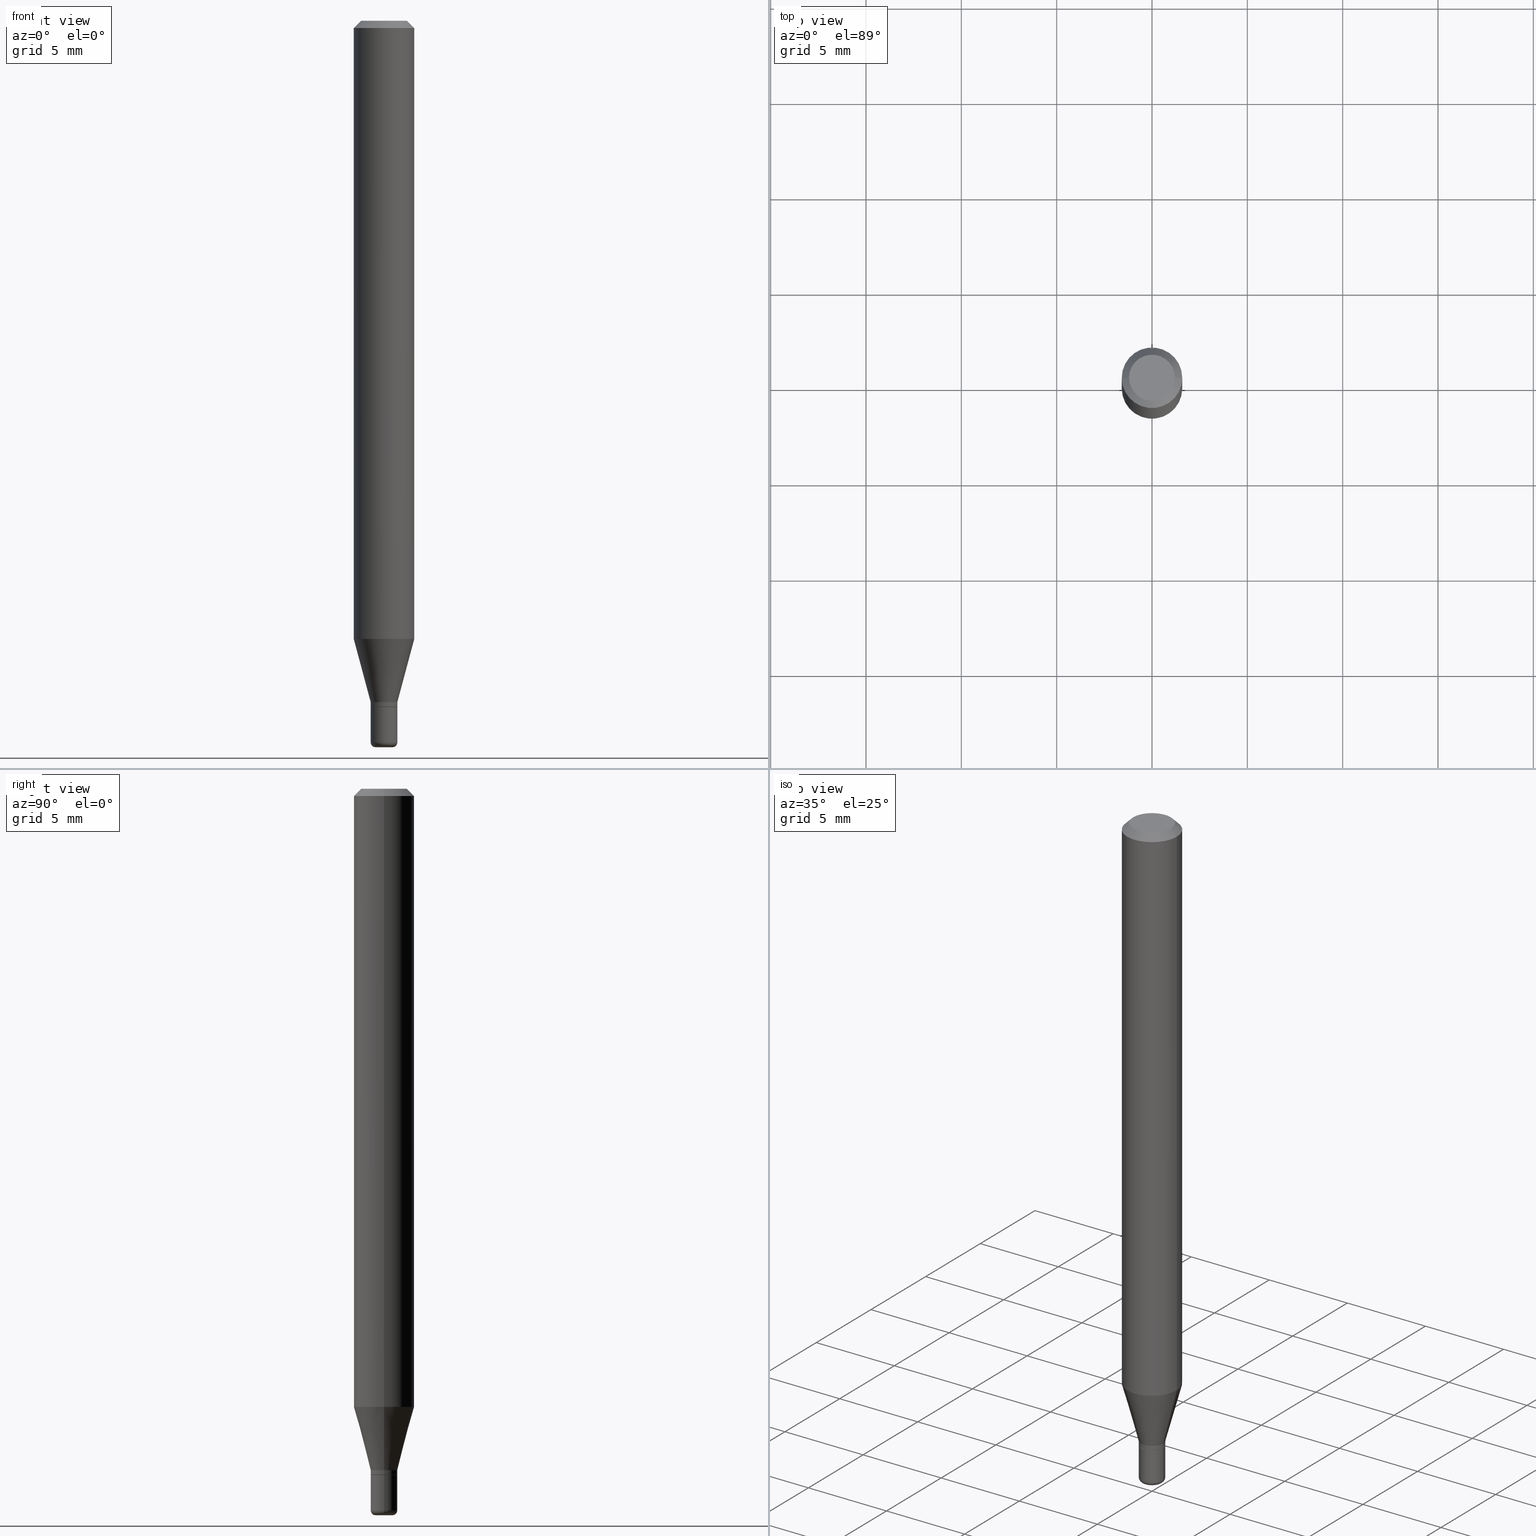
[diagram: canonical four-view strip — front | top / right | iso, engineering-drawing reading convention]
A machine part, canonical four-view strip (front | top / right | iso — engineering-drawing reading convention). The complete STEP part file that produces these views, byte-faithful:
ISO-10303-21;
HEADER;
FILE_DESCRIPTION (( 'STEP AP203' ),
    '1' );
FILE_NAME ('09014.STEP',
    '2024-02-29T21:17:28',
    ( '' ),
    ( '' ),
    'SwSTEP 2.0',
    'SolidWorks 2023',
    '' );
FILE_SCHEMA (( 'CONFIG_CONTROL_DESIGN' ));
ENDSEC;

DATA;
#1 = CARTESIAN_POINT ( 'NONE',  ( -0.06250000000000000000, 3.840629472727455270E-16, -0.01499999999999970281 ) ) ;
#2 = DIRECTION ( 'NONE',  ( 1.000000000000000000, -6.982962677686269077E-15, 0.000000000000000000 ) ) ;
#3 = EDGE_LOOP ( 'NONE', ( #253, #7, #452, #295 ) ) ;
#4 = DIRECTION ( 'NONE',  ( -2.445468806185136597E-29, 3.491481338843145583E-15, 1.000000000000000000 ) ) ;
#5 = CARTESIAN_POINT ( 'NONE',  ( 3.465229298364339647E-29, -4.947429057140738329E-15, -1.417000000000000259 ) ) ;
#6 = CYLINDRICAL_SURFACE ( 'NONE', #377, 0.02749999999999997585 ) ;
#7 = ORIENTED_EDGE ( 'NONE', *, *, #97, .T. ) ;
#8 = EDGE_CURVE ( 'NONE', #343, #446, #265, .T. ) ;
#9 = CARTESIAN_POINT ( 'NONE',  ( 3.668203209277704895E-29, -5.237222008264718177E-15, -1.500000000000000222 ) ) ;
#10 = CARTESIAN_POINT ( 'NONE',  ( 3.440774610302487541E-29, -4.912514243752305891E-15, -1.407000000000000028 ) ) ;
#11 = DIRECTION ( 'NONE',  ( 1.000000000000000000, -6.982962677686279332E-15, 0.000000000000000000 ) ) ;
#12 = ADVANCED_FACE ( 'NONE', ( #168 ), #504, .T. ) ;
#13 = DIRECTION ( 'NONE',  ( 0.7071067811866199593, -2.468850131083015945E-15, 0.7071067811864750752 ) ) ;
#14 = ORIENTED_EDGE ( 'NONE', *, *, #75, .F. ) ;
#15 = CARTESIAN_POINT ( 'NONE',  ( 3.316907271900976589E-16, 0.04750000000000000749, -2.925296391183627249E-17 ) ) ;
#16 = CARTESIAN_POINT ( 'NONE',  ( 0.02749999999999997932, -5.104545717388677595E-15, -1.407000000000000028 ) ) ;
#17 = AXIS2_PLACEMENT_3D ( 'NONE', #107, #467, #264 ) ;
#18 = LOCAL_TIME ( 16, 17, 28.00000000000000000, #276 ) ;
#19 = DIRECTION ( 'NONE',  ( 1.000000000000000000, -6.982962677686265922E-15, 4.876176775795935232E-29 ) ) ;
#20 = EDGE_LOOP ( 'NONE', ( #287, #457, #94, #83 ) ) ;
#21 = FACE_OUTER_BOUND ( 'NONE', #58, .T. ) ;
#22 = VERTEX_POINT ( 'NONE', #327 ) ;
#23 = DIRECTION ( 'NONE',  ( -2.445468806185136597E-29, 3.491481338843145583E-15, 1.000000000000000000 ) ) ;
#24 = APPROVAL_STATUS ( 'not_yet_approved' ) ;
#25 = DIRECTION ( 'NONE',  ( 0.2588190451025207950, 1.565188264969625912E-15, 0.9659258262890682012 ) ) ;
#26 = EDGE_CURVE ( 'NONE', #292, #22, #321, .T. ) ;
#27 = CARTESIAN_POINT ( 'NONE',  ( -0.06250000000000000000, 4.440892098500626162E-16, -3.074334431409316114E-30 ) ) ;
#28 = CALENDAR_DATE ( 2024, 29, 2 ) ;
#29 = CARTESIAN_POINT ( 'NONE',  ( 3.643748521215853910E-29, -5.202307194876288105E-15, -1.490000000000000213 ) ) ;
#30 = PERSON_AND_ORGANIZATION_ROLE ( 'classification_officer' ) ;
#31 = DIRECTION ( 'NONE',  ( 1.000000000000000000, -6.982962677686266711E-15, 4.852736867747365086E-29 ) ) ;
#32 = CALENDAR_DATE ( 2024, 29, 2 ) ;
#33 = LOCAL_TIME ( 16, 17, 28.00000000000000000, #256 ) ;
#34 = ORIENTED_EDGE ( 'NONE', *, *, #307, .F. ) ;
#35 = ORIENTED_EDGE ( 'NONE', *, *, #97, .F. ) ;
#36 = ORIENTED_EDGE ( 'NONE', *, *, #477, .F. ) ;
#37 = DIRECTION ( 'NONE',  ( -2.445468806185136597E-29, 3.491481338843145583E-15, 1.000000000000000000 ) ) ;
#38 = CARTESIAN_POINT ( 'NONE',  ( 3.440774610302487541E-29, -4.912514243752305891E-15, -1.407000000000000028 ) ) ;
#39 = ORIENTED_EDGE ( 'NONE', *, *, #384, .T. ) ;
#40 = FACE_OUTER_BOUND ( 'NONE', #262, .T. ) ;
#41 = CIRCLE ( 'NONE', #352, 0.01750000000000000167 ) ;
#42 = FACE_OUTER_BOUND ( 'NONE', #150, .T. ) ;
#43 = CIRCLE ( 'NONE', #149, 0.01750000000000000167 ) ;
#44 = DESIGN_CONTEXT ( 'detailed design', #122, 'design' ) ;
#45 = CARTESIAN_POINT ( 'NONE',  ( 3.121343126147216343E-29, -4.456450742493863778E-15, -1.276378221735089191 ) ) ;
#46 = DIRECTION ( 'NONE',  ( -0.7071067811865479058, 2.468850131082261005E-15, -0.7071067811865471286 ) ) ;
#47 = ADVANCED_FACE ( 'NONE', ( #171 ), #250, .F. ) ;
#48 = ORIENTED_EDGE ( 'NONE', *, *, #116, .T. ) ;
#49 = CARTESIAN_POINT ( 'NONE',  ( 3.643748521215853910E-29, -5.202307194876288105E-15, -1.490000000000000213 ) ) ;
#50 = CYLINDRICAL_SURFACE ( 'NONE', #345, 0.06250000000000000000 ) ;
#51 = DIRECTION ( 'NONE',  ( 1.000000000000000000, -6.982962677686266711E-15, 4.852736867747365086E-29 ) ) ;
#52 = DIRECTION ( 'NONE',  ( -2.438088387897960049E-29, 3.491481338843145188E-15, 1.000000000000000000 ) ) ;
#53 = VECTOR ( 'NONE', #402, 39.37007874015748143 ) ;
#54 = AXIS2_PLACEMENT_3D ( 'NONE', #479, #400, #249 ) ;
#55 = VERTEX_POINT ( 'NONE', #418 ) ;
#56 = DIRECTION ( 'NONE',  ( -2.438088387897960049E-29, 3.491481338843145188E-15, 1.000000000000000000 ) ) ;
#57 = DIRECTION ( 'NONE',  ( -2.445468806185136597E-29, 3.491481338843145583E-15, 1.000000000000000000 ) ) ;
#58 = EDGE_LOOP ( 'NONE', ( #283, #462 ) ) ;
#59 = CARTESIAN_POINT ( 'NONE',  ( 3.465229298364339647E-29, -4.947429057140738329E-15, -1.417000000000000259 ) ) ;
#60 = AXIS2_PLACEMENT_3D ( 'NONE', #273, #342, #488 ) ;
#61 = AXIS2_PLACEMENT_3D ( 'NONE', #426, #341, #310 ) ;
#62 = CARTESIAN_POINT ( 'NONE',  ( -0.02699999999999996847, -4.755582518485511109E-15, -1.417000000000000259 ) ) ;
#63 = ADVANCED_FACE ( 'NONE', ( #350 ), #437, .T. ) ;
#64 = PERSON_AND_ORGANIZATION ( #394, #209 ) ;
#65 = DIRECTION ( 'NONE',  ( -1.000000000000000000, 6.982962677686266711E-15, 0.000000000000000000 ) ) ;
#66 = EDGE_CURVE ( 'NONE', #55, #82, #41, .T. ) ;
#67 = CLOSED_SHELL ( 'NONE', ( #252, #398, #47, #408, #12, #236 ) ) ;
#68 = APPROVAL_ROLE ( '' ) ;
#69 = AXIS2_PLACEMENT_3D ( 'NONE', #59, #23, #383 ) ;
#70 = APPROVAL_ROLE ( '' ) ;
#71 = PERSON_AND_ORGANIZATION ( #394, #209 ) ;
#72 = COORDINATED_UNIVERSAL_TIME_OFFSET ( 5, 0, .BEHIND. ) ;
#73 = AXIS2_PLACEMENT_3D ( 'NONE', #423, #502, #31 ) ;
#74 = AXIS2_PLACEMENT_3D ( 'NONE', #90, #211, #369 ) ;
#75 = EDGE_CURVE ( 'NONE', #446, #338, #269, .T. ) ;
#76 = VERTEX_POINT ( 'NONE', #387 ) ;
#77 = CARTESIAN_POINT ( 'NONE',  ( 0.02749999999999997238, -1.920314736363721225E-16, 1.340948613343880837E-30 ) ) ;
#78 = ORIENTED_EDGE ( 'NONE', *, *, #354, .T. ) ;
#79 = CC_DESIGN_PERSON_AND_ORGANIZATION_ASSIGNMENT ( #436, #198, ( #88 ) ) ;
#80 = DIRECTION ( 'NONE',  ( -2.445468806185136597E-29, 3.491481338843145583E-15, 1.000000000000000000 ) ) ;
#81 = DIRECTION ( 'NONE',  ( -2.445468806185136597E-29, 3.491481338843145583E-15, 1.000000000000000000 ) ) ;
#82 = VERTEX_POINT ( 'NONE', #119 ) ;
#83 = ORIENTED_EDGE ( 'NONE', *, *, #84, .F. ) ;
#84 = EDGE_CURVE ( 'NONE', #22, #292, #391, .T. ) ;
#85 = ORIENTED_EDGE ( 'NONE', *, *, #320, .F. ) ;
#86 = CARTESIAN_POINT ( 'NONE',  ( 0.02749999999999997932, -5.104545717388677595E-15, -1.407000000000000028 ) ) ;
#87 = LOCAL_TIME ( 16, 17, 28.00000000000000000, #232 ) ;
#88 = PRODUCT_DEFINITION ( 'UNKNOWN', '', #323, #44 ) ;
#89 = DIRECTION ( 'NONE',  ( 1.000000000000000000, -6.982962677686258822E-15, 0.000000000000000000 ) ) ;
#90 = CARTESIAN_POINT ( 'NONE',  ( 0.000000000000000000, 0.000000000000000000, 0.000000000000000000 ) ) ;
#91 = CARTESIAN_POINT ( 'NONE',  ( -6.680649051745406845E-45, 9.538196290434862081E-31, 2.731847993664263218E-16 ) ) ;
#92 = DIRECTION ( 'NONE',  ( -2.445468806185136877E-29, 3.491481338843145188E-15, 1.000000000000000000 ) ) ;
#93 = EDGE_LOOP ( 'NONE', ( #163, #127, #282, #138 ) ) ;
#94 = ORIENTED_EDGE ( 'NONE', *, *, #259, .T. ) ;
#95 = CARTESIAN_POINT ( 'NONE',  ( 0.000000000000000000, 0.000000000000000000, 0.000000000000000000 ) ) ;
#96 = CARTESIAN_POINT ( 'NONE',  ( 0.06250000000000000000, -4.888073874380378612E-16, -0.01499999999999970281 ) ) ;
#97 = EDGE_CURVE ( 'NONE', #22, #349, #274, .T. ) ;
#98 = SECURITY_CLASSIFICATION ( '', '', #312 ) ;
#99 = DIRECTION ( 'NONE',  ( -0.2588190451025207950, 5.211531920934546309E-15, 0.9659258262890682012 ) ) ;
#100 = EDGE_LOOP ( 'NONE', ( #330, #245, #261, #419 ) ) ;
#101 = CC_DESIGN_DATE_AND_TIME_ASSIGNMENT ( #358, #113, ( #88 ) ) ;
#102 = ORIENTED_EDGE ( 'NONE', *, *, #222, .F. ) ;
#103 = APPLICATION_PROTOCOL_DEFINITION ( 'international standard', 'config_control_design', 1994, #159 ) ;
#104 = ORIENTED_EDGE ( 'NONE', *, *, #505, .T. ) ;
#105 = DIRECTION ( 'NONE',  ( 1.000000000000000000, -6.982962677686265922E-15, 4.876176775795935793E-29 ) ) ;
#106 = ORIENTED_EDGE ( 'NONE', *, *, #153, .F. ) ;
#107 = CARTESIAN_POINT ( 'NONE',  ( 0.000000000000000000, 0.000000000000000000, 0.000000000000000000 ) ) ;
#108 = AXIS2_PLACEMENT_3D ( 'NONE', #439, #401, #356 ) ;
#109 = LOCAL_TIME ( 16, 17, 28.00000000000000000, #72 ) ;
#110 = ORIENTED_EDGE ( 'NONE', *, *, #384, .F. ) ;
#111 = PERSON_AND_ORGANIZATION_ROLE ( 'design_owner' ) ;
#112 = DIRECTION ( 'NONE',  ( 1.000000000000000000, -6.982962677686248567E-15, 0.000000000000000000 ) ) ;
#113 = DATE_TIME_ROLE ( 'creation_date' ) ;
#114 = CARTESIAN_POINT ( 'NONE',  ( 3.668203209277632395E-31, -5.237222008264614861E-17, -0.01499999999999970281 ) ) ;
#115 = DIRECTION ( 'NONE',  ( -2.445468806185136877E-29, 3.491481338843145188E-15, 1.000000000000000000 ) ) ;
#116 = EDGE_CURVE ( 'NONE', #448, #319, #152, .T. ) ;
#117 = AXIS2_PLACEMENT_3D ( 'NONE', #91, #177, #51 ) ;
#118 = DIRECTION ( 'NONE',  ( 1.000000000000000000, -6.982962677686274599E-15, 0.000000000000000000 ) ) ;
#119 = CARTESIAN_POINT ( 'NONE',  ( -0.01750000000000000167, -5.059892486024481641E-15, -1.500000000000000222 ) ) ;
#120 = CALENDAR_DATE ( 2024, 29, 2 ) ;
#121 = ADVANCED_BREP_SHAPE_REPRESENTATION ( '09014', ( #492, #317, #61 ), #165 ) ;
#122 = APPLICATION_CONTEXT ( 'configuration controlled 3d designs of mechanical parts and assemblies' ) ;
#123 = ORIENTED_EDGE ( 'NONE', *, *, #205, .F. ) ;
#124 = UNCERTAINTY_MEASURE_WITH_UNIT (LENGTH_MEASURE( 1.000000000000000082E-05 ), #305, 'distance_accuracy_value', 'NONE');
#125 = AXIS2_PLACEMENT_3D ( 'NONE', #218, #142, #11 ) ;
#126 = DIRECTION ( 'NONE',  ( -2.445468806185136877E-29, 3.491481338843145188E-15, 1.000000000000000000 ) ) ;
#127 = ORIENTED_EDGE ( 'NONE', *, *, #161, .T. ) ;
#128 = DIRECTION ( 'NONE',  ( 1.000000000000000000, -6.982962677686251722E-15, 0.000000000000000000 ) ) ;
#129 = EDGE_LOOP ( 'NONE', ( #14, #491, #39, #85 ) ) ;
#130 = EDGE_CURVE ( 'NONE', #480, #334, #277, .T. ) ;
#131 = CARTESIAN_POINT ( 'NONE',  ( 3.668203209277632395E-31, -5.237222008264614861E-17, -0.01499999999999970281 ) ) ;
#132 = ORIENTED_EDGE ( 'NONE', *, *, #75, .T. ) ;
#133 = ORIENTED_EDGE ( 'NONE', *, *, #320, .T. ) ;
#134 = DIRECTION ( 'NONE',  ( -2.445468806185136597E-29, 3.491481338843145583E-15, 1.000000000000000000 ) ) ;
#135 = DIRECTION ( 'NONE',  ( -1.000000000000000000, 6.982962677686266711E-15, 0.000000000000000000 ) ) ;
#136 = CONICAL_SURFACE ( 'NONE', #472, 0.02699999999999996847, 0.7853981633975507526 ) ;
#137 = AXIS2_PLACEMENT_3D ( 'NONE', #10, #169, #328 ) ;
#138 = ORIENTED_EDGE ( 'NONE', *, *, #259, .F. ) ;
#139 = CARTESIAN_POINT ( 'NONE',  ( 0.000000000000000000, 0.000000000000000000, 0.000000000000000000 ) ) ;
#140 = ORIENTED_EDGE ( 'NONE', *, *, #442, .T. ) ;
#141 = ORIENTED_EDGE ( 'NONE', *, *, #428, .T. ) ;
#142 = DIRECTION ( 'NONE',  ( -2.445468806185136597E-29, 3.491481338843145583E-15, 1.000000000000000000 ) ) ;
#143 = DIRECTION ( 'NONE',  ( -1.000000000000000000, 6.982962677686265922E-15, -4.876176775795935793E-29 ) ) ;
#144 = ORIENTED_EDGE ( 'NONE', *, *, #470, .F. ) ;
#145 = CARTESIAN_POINT ( 'NONE',  ( 0.02699999999999996847, -5.135969049438267025E-15, -1.417000000000000259 ) ) ;
#146 = ORIENTED_EDGE ( 'NONE', *, *, #116, .F. ) ;
#147 = DIRECTION ( 'NONE',  ( -2.445468806185136597E-29, 3.491481338843145583E-15, 1.000000000000000000 ) ) ;
#148 = AXIS2_PLACEMENT_3D ( 'NONE', #49, #284, #248 ) ;
#149 = AXIS2_PLACEMENT_3D ( 'NONE', #9, #173, #174 ) ;
#150 = EDGE_LOOP ( 'NONE', ( #444, #455, #304, #36 ) ) ;
#151 = EDGE_LOOP ( 'NONE', ( #293, #332, #216, #133 ) ) ;
#152 = LINE ( 'NONE', #507, #430 ) ;
#153 = EDGE_CURVE ( 'NONE', #326, #300, #203, .T. ) ;
#154 = LENGTH_MEASURE_WITH_UNIT ( LENGTH_MEASURE( 0.02539999999999999897 ), #503 );
#155 = ORIENTED_EDGE ( 'NONE', *, *, #272, .T. ) ;
#156 = AXIS2_PLACEMENT_3D ( 'NONE', #385, #57, #380 ) ;
#157 = DATE_AND_TIME ( #471, #87 ) ;
#158 = VECTOR ( 'NONE', #13, 39.37007874015748143 ) ;
#159 = APPLICATION_CONTEXT ( 'configuration controlled 3d designs of mechanical parts and assemblies' ) ;
#160 = CC_DESIGN_APPROVAL ( #509, ( #323 ) ) ;
#161 = EDGE_CURVE ( 'NONE', #82, #22, #406, .T. ) ;
#162 = SHAPE_DEFINITION_REPRESENTATION ( #229, #121 ) ;
#163 = ORIENTED_EDGE ( 'NONE', *, *, #66, .T. ) ;
#164 = CLOSED_SHELL ( 'NONE', ( #199, #185, #63, #331, #485, #195, #414, #379, #516, #388, #348, #231 ) ) ;
#165 =( GEOMETRIC_REPRESENTATION_CONTEXT ( 3 ) GLOBAL_UNCERTAINTY_ASSIGNED_CONTEXT ( ( #124 ) ) GLOBAL_UNIT_ASSIGNED_CONTEXT ( ( #305, #386, #463 ) ) REPRESENTATION_CONTEXT ( 'NONE', 'WORKASPACE' ) );
#166 = FACE_OUTER_BOUND ( 'NONE', #129, .T. ) ;
#167 = EDGE_CURVE ( 'NONE', #300, #319, #367, .T. ) ;
#168 = FACE_OUTER_BOUND ( 'NONE', #20, .T. ) ;
#169 = DIRECTION ( 'NONE',  ( -2.445468806185136597E-29, 3.491481338843145583E-15, 1.000000000000000000 ) ) ;
#170 = CARTESIAN_POINT ( 'NONE',  ( 3.465229298364339647E-29, -4.947429057140738329E-15, -1.417000000000000259 ) ) ;
#171 = FACE_OUTER_BOUND ( 'NONE', #364, .T. ) ;
#172 = PLANE ( 'NONE',  #484 ) ;
#173 = DIRECTION ( 'NONE',  ( -2.445468806185136597E-29, 3.491481338843145583E-15, 1.000000000000000000 ) ) ;
#174 = DIRECTION ( 'NONE',  ( 1.000000000000000000, -6.982962677686248567E-15, 0.000000000000000000 ) ) ;
#175 = VECTOR ( 'NONE', #126, 39.37007874015748143 ) ;
#176 = AXIS2_PLACEMENT_3D ( 'NONE', #251, #337, #449 ) ;
#177 = DIRECTION ( 'NONE',  ( -2.445468806185136597E-29, 3.491481338843145583E-15, 1.000000000000000000 ) ) ;
#178 = EDGE_CURVE ( 'NONE', #292, #76, #440, .T. ) ;
#179 = CARTESIAN_POINT ( 'NONE',  ( -0.06250000000000000000, -4.012361532643799584E-15, -1.276378221735089191 ) ) ;
#180 = DIRECTION ( 'NONE',  ( 1.000000000000000000, -6.982962677686250144E-15, 0.000000000000000000 ) ) ;
#181 = FACE_OUTER_BOUND ( 'NONE', #93, .T. ) ;
#182 = APPLICATION_PROTOCOL_DEFINITION ( 'international standard', 'config_control_design', 1994, #122 ) ;
#183 = ORIENTED_EDGE ( 'NONE', *, *, #494, .T. ) ;
#184 = AXIS2_PLACEMENT_3D ( 'NONE', #29, #357, #399 ) ;
#185 = ADVANCED_FACE ( 'NONE', ( #281 ), #136, .T. ) ;
#186 = AXIS2_PLACEMENT_3D ( 'NONE', #15, #301, #221 ) ;
#187 = PLANE ( 'NONE',  #415 ) ;
#188 = PLANE ( 'NONE',  #186 ) ;
#189 = CC_DESIGN_PERSON_AND_ORGANIZATION_ASSIGNMENT ( #71, #30, ( #98 ) ) ;
#190 = CARTESIAN_POINT ( 'NONE',  ( 3.121343126147216343E-29, -4.456450742493863778E-15, -1.276378221735089191 ) ) ;
#191 = CARTESIAN_POINT ( 'NONE',  ( 3.440774610302487541E-29, -4.912514243752305891E-15, -1.407000000000000028 ) ) ;
#192 = CARTESIAN_POINT ( 'NONE',  ( 0.02699999999999996847, -5.135969049438267025E-15, -1.417000000000000259 ) ) ;
#193 = AXIS2_PLACEMENT_3D ( 'NONE', #204, #241, #118 ) ;
#194 = AXIS2_PLACEMENT_3D ( 'NONE', #191, #417, #224 ) ;
#195 = ADVANCED_FACE ( 'NONE', ( #42 ), #397, .T. ) ;
#196 = DIRECTION ( 'NONE',  ( 1.000000000000000000, -6.982962677686258822E-15, 0.000000000000000000 ) ) ;
#197 = COORDINATED_UNIVERSAL_TIME_OFFSET ( 5, 0, .BEHIND. ) ;
#198 = PERSON_AND_ORGANIZATION_ROLE ( 'creator' ) ;
#199 = ADVANCED_FACE ( 'NONE', ( #329 ), #225, .T. ) ;
#200 = AXIS2_PLACEMENT_3D ( 'NONE', #244, #405, #212 ) ;
#201 = CONICAL_SURFACE ( 'NONE', #447, 0.02699999999999996847, 0.7853981633975507526 ) ;
#202 = APPROVAL_DATE_TIME ( #390, #355 ) ;
#203 = LINE ( 'NONE', #476, #175 ) ;
#204 = CARTESIAN_POINT ( 'NONE',  ( 0.01750000000000000167, -5.324509041735797299E-15, -1.490000000000000213 ) ) ;
#205 = EDGE_CURVE ( 'NONE', #319, #343, #427, .T. ) ;
#206 = FACE_OUTER_BOUND ( 'NONE', #3, .T. ) ;
#207 = EDGE_LOOP ( 'NONE', ( #78, #286, #499, #146 ) ) ;
#208 = ORIENTED_EDGE ( 'NONE', *, *, #66, .F. ) ;
#209 = ORGANIZATION ( 'UNSPECIFIED', 'UNSPECIFIED', '' ) ;
#210 = DIRECTION ( 'NONE',  ( 2.438088387897960049E-29, -3.491481338843145188E-15, -1.000000000000000000 ) ) ;
#211 = DIRECTION ( 'NONE',  ( -2.445468806185136597E-29, 3.491481338843145583E-15, 1.000000000000000000 ) ) ;
#212 = DIRECTION ( 'NONE',  ( 1.000000000000000000, -6.982962677686250144E-15, 0.000000000000000000 ) ) ;
#213 = DIRECTION ( 'NONE',  ( -2.445468806185136597E-29, 3.491481338843145583E-15, 1.000000000000000000 ) ) ;
#214 = ORIENTED_EDGE ( 'NONE', *, *, #8, .F. ) ;
#215 = CARTESIAN_POINT ( 'NONE',  ( 0.000000000000000000, 0.000000000000000000, 0.000000000000000000 ) ) ;
#216 = ORIENTED_EDGE ( 'NONE', *, *, #434, .T. ) ;
#217 = CARTESIAN_POINT ( 'NONE',  ( -0.02749999999999997932, -4.364738262031038678E-15, -1.407000000000000028 ) ) ;
#218 = CARTESIAN_POINT ( 'NONE',  ( 3.465229298364339647E-29, -4.947429057140738329E-15, -1.417000000000000259 ) ) ;
#219 = CIRCLE ( 'NONE', #425, 0.02750000000000000014 ) ;
#220 = CIRCLE ( 'NONE', #407, 0.02749999999999997238 ) ;
#221 = DIRECTION ( 'NONE',  ( -1.000000000000000000, 6.982962677686265922E-15, -4.876176775795935793E-29 ) ) ;
#222 = EDGE_CURVE ( 'NONE', #487, #448, #311, .T. ) ;
#223 = LINE ( 'NONE', #62, #266 ) ;
#224 = DIRECTION ( 'NONE',  ( 1.000000000000000000, -6.982962677686250144E-15, 0.000000000000000000 ) ) ;
#225 = CYLINDRICAL_SURFACE ( 'NONE', #17, 0.02749999999999997585 ) ;
#226 = AXIS2_PLACEMENT_3D ( 'NONE', #38, #243, #180 ) ;
#227 = AXIS2_PLACEMENT_3D ( 'NONE', #131, #412, #135 ) ;
#228 = DIRECTION ( 'NONE',  ( -2.445468806185136597E-29, 3.491481338843145583E-15, 1.000000000000000000 ) ) ;
#229 = PRODUCT_DEFINITION_SHAPE ( 'NONE', 'NONE',  #88 ) ;
#230 = DIRECTION ( 'NONE',  ( -0.7071067811866199593, 7.493145998870616062E-15, 0.7071067811864750752 ) ) ;
#231 = ADVANCED_FACE ( 'NONE', ( #404 ), #6, .T. ) ;
#232 = COORDINATED_UNIVERSAL_TIME_OFFSET ( 5, 0, .BEHIND. ) ;
#233 = DIRECTION ( 'NONE',  ( -2.445468806185136597E-29, 3.491481338843145583E-15, 1.000000000000000000 ) ) ;
#234 = PRODUCT_RELATED_PRODUCT_CATEGORY ( 'detail', '', ( #340 ) ) ;
#235 = APPROVAL_DATE_TIME ( #157, #509 ) ;
#236 = ADVANCED_FACE ( 'NONE', ( #389 ), #187, .F. ) ;
#237 = DATE_TIME_ROLE ( 'classification_date' ) ;
#238 = AXIS2_PLACEMENT_3D ( 'NONE', #114, #270, #65 ) ;
#239 = VECTOR ( 'NONE', #267, 39.37007874015748143 ) ;
#240 = PERSON_AND_ORGANIZATION ( #394, #209 ) ;
#241 = DIRECTION ( 'NONE',  ( -6.982962677686266711E-15, -1.000000000000000000, 3.491481338843145583E-15 ) ) ;
#242 = CARTESIAN_POINT ( 'NONE',  ( 0.06250000000000000000, -4.364351673553916694E-16, 3.047610484872459871E-30 ) ) ;
#243 = DIRECTION ( 'NONE',  ( -2.445468806185136597E-29, 3.491481338843145583E-15, 1.000000000000000000 ) ) ;
#244 = CARTESIAN_POINT ( 'NONE',  ( 3.440774610302487541E-29, -4.912514243752305891E-15, -1.407000000000000028 ) ) ;
#245 = ORIENTED_EDGE ( 'NONE', *, *, #470, .T. ) ;
#246 = VECTOR ( 'NONE', #501, 39.37007874015748143 ) ;
#247 = CONICAL_SURFACE ( 'NONE', #194, 0.02749999999999997932, 0.2617993877991495189 ) ;
#248 = DIRECTION ( 'NONE',  ( 1.000000000000000000, -6.982962677686258033E-15, 4.883557194083110098E-29 ) ) ;
#249 = DIRECTION ( 'NONE',  ( 1.000000000000000000, -6.982962677686265922E-15, 4.876176775795935232E-29 ) ) ;
#250 = PLANE ( 'NONE',  #359 ) ;
#251 = CARTESIAN_POINT ( 'NONE',  ( 3.668203209277632395E-31, -5.237222008264614861E-17, -0.01499999999999970281 ) ) ;
#252 = ADVANCED_FACE ( 'NONE', ( #181 ), #478, .T. ) ;
#253 = ORIENTED_EDGE ( 'NONE', *, *, #26, .T. ) ;
#254 = CYLINDRICAL_SURFACE ( 'NONE', #74, 0.02749999999999997238 ) ;
#255 = CC_DESIGN_PERSON_AND_ORGANIZATION_ASSIGNMENT ( #465, #111, ( #340 ) ) ;
#256 = COORDINATED_UNIVERSAL_TIME_OFFSET ( 5, 0, .BEHIND. ) ;
#257 = CIRCLE ( 'NONE', #60, 0.06250000000000000000 ) ;
#258 = CIRCLE ( 'NONE', #156, 0.02699999999999996847 ) ;
#259 = EDGE_CURVE ( 'NONE', #55, #292, #511, .T. ) ;
#260 = CARTESIAN_POINT ( 'NONE',  ( -0.02699999999999996847, -4.752933291311399907E-15, -1.417000000000000259 ) ) ;
#261 = ORIENTED_EDGE ( 'NONE', *, *, #222, .T. ) ;
#262 = EDGE_LOOP ( 'NONE', ( #498, #144 ) ) ;
#263 = MECHANICAL_CONTEXT ( 'NONE', #159, 'mechanical' ) ;
#264 = DIRECTION ( 'NONE',  ( 1.000000000000000000, -6.982962677686265922E-15, 4.876176775795935232E-29 ) ) ;
#265 = CIRCLE ( 'NONE', #368, 0.06250000000000000000 ) ;
#266 = VECTOR ( 'NONE', #230, 39.37007874015748143 ) ;
#267 = DIRECTION ( 'NONE',  ( 0.7071067811865479058, -7.319954787623257623E-15, -0.7071067811865471286 ) ) ;
#268 = EDGE_CURVE ( 'NONE', #450, #338, #257, .T. ) ;
#269 = LINE ( 'NONE', #27, #335 ) ;
#270 = DIRECTION ( 'NONE',  ( 2.445468806185136597E-29, -3.491481338843145583E-15, -1.000000000000000000 ) ) ;
#271 = CC_DESIGN_APPROVAL ( #355, ( #88 ) ) ;
#272 = EDGE_CURVE ( 'NONE', #76, #349, #219, .T. ) ;
#273 = CARTESIAN_POINT ( 'NONE',  ( 3.668203209277632395E-31, -5.237222008264614861E-17, -0.01499999999999970281 ) ) ;
#274 = LINE ( 'NONE', #432, #246 ) ;
#275 = CC_DESIGN_PERSON_AND_ORGANIZATION_ASSIGNMENT ( #433, #396, ( #323 ) ) ;
#276 = COORDINATED_UNIVERSAL_TIME_OFFSET ( 5, 0, .BEHIND. ) ;
#277 = CIRCLE ( 'NONE', #73, 0.04750000000000000749 ) ;
#278 = EDGE_LOOP ( 'NONE', ( #410, #104, #482, #441 ) ) ;
#279 = CONICAL_SURFACE ( 'NONE', #227, 0.06250000000000000000, 0.7853981633974488341 ) ;
#280 = CARTESIAN_POINT ( 'NONE',  ( -0.06250000000000000000, -1.810322271438191826E-15, -0.01499999999999970281 ) ) ;
#281 = FACE_OUTER_BOUND ( 'NONE', #508, .T. ) ;
#282 = ORIENTED_EDGE ( 'NONE', *, *, #26, .F. ) ;
#283 = ORIENTED_EDGE ( 'NONE', *, *, #297, .T. ) ;
#284 = DIRECTION ( 'NONE',  ( -2.445468806185136597E-29, 3.491481338843145583E-15, 1.000000000000000000 ) ) ;
#285 = CYLINDRICAL_SURFACE ( 'NONE', #54, 0.02749999999999997238 ) ;
#286 = ORIENTED_EDGE ( 'NONE', *, *, #153, .T. ) ;
#287 = ORIENTED_EDGE ( 'NONE', *, *, #161, .F. ) ;
#288 = AXIS2_PLACEMENT_3D ( 'NONE', #290, #4, #89 ) ;
#289 = CIRCLE ( 'NONE', #506, 0.06250000000000000000 ) ;
#290 = CARTESIAN_POINT ( 'NONE',  ( 3.643748521215853910E-29, -5.202307194876288105E-15, -1.490000000000000213 ) ) ;
#291 = DIRECTION ( 'NONE',  ( 1.000000000000000000, -6.982962677686265922E-15, 4.876176775795935793E-29 ) ) ;
#292 = VERTEX_POINT ( 'NONE', #451 ) ;
#293 = ORIENTED_EDGE ( 'NONE', *, *, #505, .F. ) ;
#294 = DIRECTION ( 'NONE',  ( 1.000000000000000000, -6.982962677686266711E-15, 4.876176775795935793E-29 ) ) ;
#295 = ORIENTED_EDGE ( 'NONE', *, *, #178, .F. ) ;
#296 = DIRECTION ( 'NONE',  ( -2.445468806185136597E-29, 3.491481338843145583E-15, 1.000000000000000000 ) ) ;
#297 = EDGE_CURVE ( 'NONE', #334, #480, #308, .T. ) ;
#298 = CARTESIAN_POINT ( 'NONE',  ( -0.02749999999999997932, -4.717114991418277772E-15, -1.407000000000000028 ) ) ;
#299 = CIRCLE ( 'NONE', #431, 0.02749999999999997238 ) ;
#300 = VERTEX_POINT ( 'NONE', #217 ) ;
#301 = DIRECTION ( 'NONE',  ( 2.438088387897960049E-29, -3.491481338843145188E-15, -1.000000000000000000 ) ) ;
#302 = DIRECTION ( 'NONE',  ( 1.000000000000000000, -6.982962677686279332E-15, 0.000000000000000000 ) ) ;
#303 = ORIENTED_EDGE ( 'NONE', *, *, #461, .T. ) ;
#304 = ORIENTED_EDGE ( 'NONE', *, *, #205, .T. ) ;
#305 =( CONVERSION_BASED_UNIT ( 'INCH', #154 ) LENGTH_UNIT ( ) NAMED_UNIT ( #344 ) );
#306 = EDGE_LOOP ( 'NONE', ( #208, #34 ) ) ;
#307 = EDGE_CURVE ( 'NONE', #82, #55, #43, .T. ) ;
#308 = CIRCLE ( 'NONE', #117, 0.04750000000000000749 ) ;
#309 = CARTESIAN_POINT ( 'NONE',  ( 3.668203209277704895E-29, -5.237222008264718177E-15, -1.500000000000000222 ) ) ;
#310 = DIRECTION ( 'NONE',  ( 1.000000000000000000, 0.000000000000000000, 0.000000000000000000 ) ) ;
#311 = LINE ( 'NONE', #192, #158 ) ;
#312 = SECURITY_CLASSIFICATION_LEVEL ( 'unclassified' ) ;
#313 = PERSON_AND_ORGANIZATION ( #394, #209 ) ;
#314 = CC_DESIGN_SECURITY_CLASSIFICATION ( #98, ( #323 ) ) ;
#315 = VECTOR ( 'NONE', #25, 39.37007874015748854 ) ;
#316 = VECTOR ( 'NONE', #46, 39.37007874015748143 ) ;
#317 = MANIFOLD_SOLID_BREP ( 'Body-Move/Copy2[2]', #164 ) ;
#318 = APPROVAL_STATUS ( 'not_yet_approved' ) ;
#319 = VERTEX_POINT ( 'NONE', #86 ) ;
#320 = EDGE_CURVE ( 'NONE', #338, #450, #518, .T. ) ;
#321 = CIRCLE ( 'NONE', #288, 0.02749999999999994463 ) ;
#322 = EDGE_LOOP ( 'NONE', ( #140, #303, #214, #123 ) ) ;
#323 = PRODUCT_DEFINITION_FORMATION_WITH_SPECIFIED_SOURCE ( 'ANY', '', #340, .NOT_KNOWN. ) ;
#324 = CARTESIAN_POINT ( 'NONE',  ( -0.02749999999999997238, -4.750284064137288706E-15, -1.416500000000000314 ) ) ;
#325 = APPROVAL ( #318, 'UNSPECIFIED' ) ;
#326 = VERTEX_POINT ( 'NONE', #324 ) ;
#327 = CARTESIAN_POINT ( 'NONE',  ( -0.02749999999999994463, -4.879468873674486281E-15, -1.490000000000000213 ) ) ;
#328 = DIRECTION ( 'NONE',  ( 1.000000000000000000, -6.982962677686250144E-15, 0.000000000000000000 ) ) ;
#329 = FACE_OUTER_BOUND ( 'NONE', #207, .T. ) ;
#330 = ORIENTED_EDGE ( 'NONE', *, *, #494, .F. ) ;
#331 = ADVANCED_FACE ( 'NONE', ( #486 ), #413, .T. ) ;
#332 = ORIENTED_EDGE ( 'NONE', *, *, #297, .F. ) ;
#333 = CARTESIAN_POINT ( 'NONE',  ( -0.02750000000000000014, -4.879468873674486281E-15, -1.417000000000000259 ) ) ;
#334 = VERTEX_POINT ( 'NONE', #403 ) ;
#335 = VECTOR ( 'NONE', #474, 39.37007874015748143 ) ;
#336 = LOCAL_TIME ( 16, 17, 28.00000000000000000, #197 ) ;
#337 = DIRECTION ( 'NONE',  ( -2.445468806185136597E-29, 3.491481338843145583E-15, 1.000000000000000000 ) ) ;
#338 = VERTEX_POINT ( 'NONE', #280 ) ;
#339 = CARTESIAN_POINT ( 'NONE',  ( 0.06250000000000000000, -4.892885909849253869E-15, -1.276378221735089191 ) ) ;
#340 = PRODUCT ( '09014', '09014', '', ( #263 ) ) ;
#341 = DIRECTION ( 'NONE',  ( 0.000000000000000000, 0.000000000000000000, 1.000000000000000000 ) ) ;
#342 = DIRECTION ( 'NONE',  ( -2.445468806185136597E-29, 3.491481338843145583E-15, 1.000000000000000000 ) ) ;
#343 = VERTEX_POINT ( 'NONE', #339 ) ;
#344 = DIMENSIONAL_EXPONENTS ( 1.000000000000000000, 0.000000000000000000, 0.000000000000000000, 0.000000000000000000, 0.000000000000000000, 0.000000000000000000, 0.000000000000000000 ) ;
#345 = AXIS2_PLACEMENT_3D ( 'NONE', #215, #37, #409 ) ;
#346 = CARTESIAN_POINT ( 'NONE',  ( 3.582686580359766038E-29, -5.359686688179453325E-15, -1.500000000000000222 ) ) ;
#347 = ORIENTED_EDGE ( 'NONE', *, *, #428, .F. ) ;
#348 = ADVANCED_FACE ( 'NONE', ( #453 ), #201, .T. ) ;
#349 = VERTEX_POINT ( 'NONE', #333 ) ;
#350 = FACE_OUTER_BOUND ( 'NONE', #278, .T. ) ;
#351 = LINE ( 'NONE', #422, #239 ) ;
#352 = AXIS2_PLACEMENT_3D ( 'NONE', #309, #468, #112 ) ;
#353 = VECTOR ( 'NONE', #99, 39.37007874015748854 ) ;
#354 = EDGE_CURVE ( 'NONE', #448, #326, #299, .T. ) ;
#355 = APPROVAL ( #24, 'UNSPECIFIED' ) ;
#356 = DIRECTION ( 'NONE',  ( -1.000000000000000000, 7.105427357600964782E-15, 0.000000000000000000 ) ) ;
#357 = DIRECTION ( 'NONE',  ( -2.445468806185136597E-29, 3.491481338843145583E-15, 1.000000000000000000 ) ) ;
#358 = DATE_AND_TIME ( #28, #18 ) ;
#359 = AXIS2_PLACEMENT_3D ( 'NONE', #411, #210, #143 ) ;
#360 = AXIS2_PLACEMENT_3D ( 'NONE', #139, #80, #294 ) ;
#361 = APPROVAL_DATE_TIME ( #510, #325 ) ;
#362 = ORIENTED_EDGE ( 'NONE', *, *, #513, .T. ) ;
#363 = PERSON_AND_ORGANIZATION ( #394, #209 ) ;
#364 = EDGE_LOOP ( 'NONE', ( #155, #141 ) ) ;
#365 = LINE ( 'NONE', #242, #466 ) ;
#366 = ORIENTED_EDGE ( 'NONE', *, *, #454, .T. ) ;
#367 = CIRCLE ( 'NONE', #226, 0.02749999999999997932 ) ;
#368 = AXIS2_PLACEMENT_3D ( 'NONE', #45, #134, #371 ) ;
#369 = DIRECTION ( 'NONE',  ( 1.000000000000000000, -6.982962677686265922E-15, 4.876176775795935232E-29 ) ) ;
#370 = ORIENTED_EDGE ( 'NONE', *, *, #167, .F. ) ;
#371 = DIRECTION ( 'NONE',  ( 1.000000000000000000, -6.982962677686262766E-15, 0.000000000000000000 ) ) ;
#372 = DIRECTION ( 'NONE',  ( 1.000000000000000000, -6.982962677686251722E-15, 0.000000000000000000 ) ) ;
#373 = CC_DESIGN_PERSON_AND_ORGANIZATION_ASSIGNMENT ( #240, #514, ( #323 ) ) ;
#374 = ORIENTED_EDGE ( 'NONE', *, *, #8, .T. ) ;
#375 = LINE ( 'NONE', #1, #316 ) ;
#376 = EDGE_LOOP ( 'NONE', ( #106, #366, #48, #370 ) ) ;
#377 = AXIS2_PLACEMENT_3D ( 'NONE', #95, #421, #19 ) ;
#378 = CARTESIAN_POINT ( 'NONE',  ( 3.465229298364339647E-29, -4.947429057140738329E-15, -1.417000000000000259 ) ) ;
#379 = ADVANCED_FACE ( 'NONE', ( #483 ), #279, .T. ) ;
#380 = DIRECTION ( 'NONE',  ( 1.000000000000000000, -6.982962677686269077E-15, 0.000000000000000000 ) ) ;
#381 = ORIENTED_EDGE ( 'NONE', *, *, #84, .T. ) ;
#382 = EDGE_LOOP ( 'NONE', ( #374, #132, #424, #110 ) ) ;
#383 = DIRECTION ( 'NONE',  ( 1.000000000000000000, -6.982962677686269077E-15, 0.000000000000000000 ) ) ;
#384 = EDGE_CURVE ( 'NONE', #343, #450, #365, .T. ) ;
#385 = CARTESIAN_POINT ( 'NONE',  ( 3.465229298364339647E-29, -4.947429057140738329E-15, -1.417000000000000259 ) ) ;
#386 =( NAMED_UNIT ( * ) PLANE_ANGLE_UNIT ( ) SI_UNIT ( $, .RADIAN. ) );
#387 = CARTESIAN_POINT ( 'NONE',  ( 0.02750000000000000014, -5.139460530777110821E-15, -1.417000000000000259 ) ) ;
#388 = ADVANCED_FACE ( 'NONE', ( #40 ), #172, .F. ) ;
#389 = FACE_OUTER_BOUND ( 'NONE', #306, .T. ) ;
#390 = DATE_AND_TIME ( #120, #33 ) ;
#391 = CIRCLE ( 'NONE', #458, 0.02749999999999994463 ) ;
#392 = APPROVAL_PERSON_ORGANIZATION ( #313, #325, #70 ) ;
#393 = ORIENTED_EDGE ( 'NONE', *, *, #178, .T. ) ;
#394 = PERSON ( 'UNSPECIFIED', 'UNSPECIFIED', 'UNSPECIFIED', ('UNSPECIFIED'), ('UNSPECIFIED'), ('UNSPECIFIED') ) ;
#395 = CALENDAR_DATE ( 2024, 29, 2 ) ;
#396 = PERSON_AND_ORGANIZATION_ROLE ( 'design_supplier' ) ;
#397 = CONICAL_SURFACE ( 'NONE', #200, 0.02749999999999997932, 0.2617993877991495189 ) ;
#398 = ADVANCED_FACE ( 'NONE', ( #206 ), #285, .T. ) ;
#399 = DIRECTION ( 'NONE',  ( 1.000000000000000000, -6.982962677686258033E-15, 4.883557194083110098E-29 ) ) ;
#400 = DIRECTION ( 'NONE',  ( -2.445468806185136597E-29, 3.491481338843145583E-15, 1.000000000000000000 ) ) ;
#401 = DIRECTION ( 'NONE',  ( 7.105427357601001859E-15, 1.000000000000000000, -3.491481338843145583E-15 ) ) ;
#402 = DIRECTION ( 'NONE',  ( -2.445468806185136877E-29, 3.491481338843145188E-15, 1.000000000000000000 ) ) ;
#403 = CARTESIAN_POINT ( 'NONE',  ( -0.04750000000000000749, 3.578768372314221353E-16, 2.731847993664239060E-16 ) ) ;
#404 = FACE_OUTER_BOUND ( 'NONE', #376, .T. ) ;
#405 = DIRECTION ( 'NONE',  ( -2.445468806185136597E-29, 3.491481338843145583E-15, 1.000000000000000000 ) ) ;
#406 = CIRCLE ( 'NONE', #108, 0.009999999999999944697 ) ;
#407 = AXIS2_PLACEMENT_3D ( 'NONE', #481, #213, #372 ) ;
#408 = ADVANCED_FACE ( 'NONE', ( #517 ), #254, .T. ) ;
#409 = DIRECTION ( 'NONE',  ( 1.000000000000000000, -6.982962677686266711E-15, 4.876176775795935793E-29 ) ) ;
#410 = ORIENTED_EDGE ( 'NONE', *, *, #130, .F. ) ;
#411 = CARTESIAN_POINT ( 'NONE',  ( 1.920314736364070050E-16, 0.02749999999999505271, -1.417000000000000259 ) ) ;
#412 = DIRECTION ( 'NONE',  ( 2.445468806185136597E-29, -3.491481338843145583E-15, -1.000000000000000000 ) ) ;
#413 = CYLINDRICAL_SURFACE ( 'NONE', #360, 0.06250000000000000000 ) ;
#414 = ADVANCED_FACE ( 'NONE', ( #166 ), #50, .T. ) ;
#415 = AXIS2_PLACEMENT_3D ( 'NONE', #346, #56, #105 ) ;
#416 = CIRCLE ( 'NONE', #69, 0.02699999999999996847 ) ;
#417 = DIRECTION ( 'NONE',  ( -2.445468806185136597E-29, 3.491481338843145583E-15, 1.000000000000000000 ) ) ;
#418 = CARTESIAN_POINT ( 'NONE',  ( 0.01750000000000000167, -5.359423855124228160E-15, -1.500000000000000222 ) ) ;
#419 = ORIENTED_EDGE ( 'NONE', *, *, #454, .F. ) ;
#420 = CC_DESIGN_DATE_AND_TIME_ASSIGNMENT ( #475, #237, ( #98 ) ) ;
#421 = DIRECTION ( 'NONE',  ( -2.445468806185136597E-29, 3.491481338843145583E-15, 1.000000000000000000 ) ) ;
#422 = CARTESIAN_POINT ( 'NONE',  ( 0.06250000000000000000, -4.811533449433669144E-16, -0.01499999999999970281 ) ) ;
#423 = CARTESIAN_POINT ( 'NONE',  ( -6.680649051745406845E-45, 9.538196290434862081E-31, 2.731847993664263218E-16 ) ) ;
#424 = ORIENTED_EDGE ( 'NONE', *, *, #268, .F. ) ;
#425 = AXIS2_PLACEMENT_3D ( 'NONE', #495, #147, #302 ) ;
#426 = CARTESIAN_POINT ( 'NONE',  ( 0.000000000000000000, 0.000000000000000000, 0.000000000000000000 ) ) ;
#427 = LINE ( 'NONE', #16, #315 ) ;
#428 = EDGE_CURVE ( 'NONE', #349, #76, #512, .T. ) ;
#429 = CARTESIAN_POINT ( 'NONE',  ( 3.643748521215853910E-29, -5.202307194876288105E-15, -1.490000000000000213 ) ) ;
#430 = VECTOR ( 'NONE', #115, 39.37007874015748143 ) ;
#431 = AXIS2_PLACEMENT_3D ( 'NONE', #489, #296, #128 ) ;
#432 = CARTESIAN_POINT ( 'NONE',  ( -0.02749999999999997238, 1.953992523340273549E-16, -1.352707149820097605E-30 ) ) ;
#433 = PERSON_AND_ORGANIZATION ( #394, #209 ) ;
#434 = EDGE_CURVE ( 'NONE', #334, #338, #375, .T. ) ;
#435 = EDGE_LOOP ( 'NONE', ( #35, #381, #393, #347 ) ) ;
#436 = PERSON_AND_ORGANIZATION ( #394, #209 ) ;
#437 = CONICAL_SURFACE ( 'NONE', #238, 0.06250000000000000000, 0.7853981633974488341 ) ;
#438 = APPROVAL_PERSON_ORGANIZATION ( #363, #509, #68 ) ;
#439 = CARTESIAN_POINT ( 'NONE',  ( -0.01750000000000000167, -5.077962216118270068E-15, -1.490000000000000213 ) ) ;
#440 = LINE ( 'NONE', #77, #53 ) ;
#441 = ORIENTED_EDGE ( 'NONE', *, *, #434, .F. ) ;
#442 = EDGE_CURVE ( 'NONE', #319, #300, #473, .T. ) ;
#443 = DIRECTION ( 'NONE',  ( -2.445468806185136597E-29, 3.491481338843145583E-15, 1.000000000000000000 ) ) ;
#444 = ORIENTED_EDGE ( 'NONE', *, *, #461, .F. ) ;
#445 = DIRECTION ( 'NONE',  ( 1.000000000000000000, -6.982962677686269077E-15, 0.000000000000000000 ) ) ;
#446 = VERTEX_POINT ( 'NONE', #179 ) ;
#447 = AXIS2_PLACEMENT_3D ( 'NONE', #5, #443, #445 ) ;
#448 = VERTEX_POINT ( 'NONE', #456 ) ;
#449 = DIRECTION ( 'NONE',  ( 1.000000000000000000, -6.982962677686266711E-15, 0.000000000000000000 ) ) ;
#450 = VERTEX_POINT ( 'NONE', #96 ) ;
#451 = CARTESIAN_POINT ( 'NONE',  ( 0.02749999999999994463, -5.394338668512659809E-15, -1.490000000000000213 ) ) ;
#452 = ORIENTED_EDGE ( 'NONE', *, *, #272, .F. ) ;
#453 = FACE_OUTER_BOUND ( 'NONE', #100, .T. ) ;
#454 = EDGE_CURVE ( 'NONE', #326, #448, #220, .T. ) ;
#455 = ORIENTED_EDGE ( 'NONE', *, *, #167, .T. ) ;
#456 = CARTESIAN_POINT ( 'NONE',  ( 0.02749999999999997238, -5.137714790107689318E-15, -1.416500000000000314 ) ) ;
#457 = ORIENTED_EDGE ( 'NONE', *, *, #307, .T. ) ;
#458 = AXIS2_PLACEMENT_3D ( 'NONE', #429, #233, #196 ) ;
#459 = CC_DESIGN_APPROVAL ( #325, ( #98 ) ) ;
#460 = CARTESIAN_POINT ( 'NONE',  ( 0.04750000000000000749, -4.035134999187568762E-16, 2.731847993664288856E-16 ) ) ;
#461 = EDGE_CURVE ( 'NONE', #300, #446, #500, .T. ) ;
#462 = ORIENTED_EDGE ( 'NONE', *, *, #130, .T. ) ;
#463 =( NAMED_UNIT ( * ) SI_UNIT ( $, .STERADIAN. ) SOLID_ANGLE_UNIT ( ) );
#464 = ORIENTED_EDGE ( 'NONE', *, *, #354, .F. ) ;
#465 = PERSON_AND_ORGANIZATION ( #394, #209 ) ;
#466 = VECTOR ( 'NONE', #92, 39.37007874015748143 ) ;
#467 = DIRECTION ( 'NONE',  ( -2.445468806185136597E-29, 3.491481338843145583E-15, 1.000000000000000000 ) ) ;
#468 = DIRECTION ( 'NONE',  ( -2.445468806185136597E-29, 3.491481338843145583E-15, 1.000000000000000000 ) ) ;
#469 = APPROVAL_ROLE ( '' ) ;
#470 = EDGE_CURVE ( 'NONE', #490, #487, #416, .T. ) ;
#471 = CALENDAR_DATE ( 2024, 29, 2 ) ;
#472 = AXIS2_PLACEMENT_3D ( 'NONE', #170, #81, #2 ) ;
#473 = CIRCLE ( 'NONE', #137, 0.02749999999999997932 ) ;
#474 = DIRECTION ( 'NONE',  ( -2.445468806185136877E-29, 3.491481338843145188E-15, 1.000000000000000000 ) ) ;
#475 = DATE_AND_TIME ( #395, #336 ) ;
#476 = CARTESIAN_POINT ( 'NONE',  ( -0.02749999999999997585, 1.953992523340273795E-16, -1.352707149820097780E-30 ) ) ;
#477 = EDGE_CURVE ( 'NONE', #446, #343, #289, .T. ) ;
#478 = TOROIDAL_SURFACE ( 'NONE', #184, 0.01750000000000000167, 0.009999999999999946432 ) ;
#479 = CARTESIAN_POINT ( 'NONE',  ( 0.000000000000000000, 0.000000000000000000, 0.000000000000000000 ) ) ;
#480 = VERTEX_POINT ( 'NONE', #460 ) ;
#481 = CARTESIAN_POINT ( 'NONE',  ( 3.464006563961246846E-29, -4.945683316471316826E-15, -1.416500000000000314 ) ) ;
#482 = ORIENTED_EDGE ( 'NONE', *, *, #268, .T. ) ;
#483 = FACE_OUTER_BOUND ( 'NONE', #151, .T. ) ;
#484 = AXIS2_PLACEMENT_3D ( 'NONE', #378, #52, #291 ) ;
#485 = ADVANCED_FACE ( 'NONE', ( #493 ), #247, .T. ) ;
#486 = FACE_OUTER_BOUND ( 'NONE', #382, .T. ) ;
#487 = VERTEX_POINT ( 'NONE', #145 ) ;
#488 = DIRECTION ( 'NONE',  ( 1.000000000000000000, -6.982962677686266711E-15, 0.000000000000000000 ) ) ;
#489 = CARTESIAN_POINT ( 'NONE',  ( 3.464006563961246846E-29, -4.945683316471316826E-15, -1.416500000000000314 ) ) ;
#490 = VERTEX_POINT ( 'NONE', #260 ) ;
#491 = ORIENTED_EDGE ( 'NONE', *, *, #477, .T. ) ;
#492 = MANIFOLD_SOLID_BREP ( 'Body-Move/Copy2[1]', #67 ) ;
#493 = FACE_OUTER_BOUND ( 'NONE', #322, .T. ) ;
#494 = EDGE_CURVE ( 'NONE', #490, #326, #223, .T. ) ;
#495 = CARTESIAN_POINT ( 'NONE',  ( 3.465229298364339647E-29, -4.947429057140738329E-15, -1.417000000000000259 ) ) ;
#496 = APPROVAL_PERSON_ORGANIZATION ( #64, #355, #469 ) ;
#497 = DIRECTION ( 'NONE',  ( 1.000000000000000000, -6.982962677686262766E-15, 0.000000000000000000 ) ) ;
#498 = ORIENTED_EDGE ( 'NONE', *, *, #513, .F. ) ;
#499 = ORIENTED_EDGE ( 'NONE', *, *, #442, .F. ) ;
#500 = LINE ( 'NONE', #298, #353 ) ;
#501 = DIRECTION ( 'NONE',  ( -2.445468806185136877E-29, 3.491481338843145188E-15, 1.000000000000000000 ) ) ;
#502 = DIRECTION ( 'NONE',  ( -2.445468806185136597E-29, 3.491481338843145583E-15, 1.000000000000000000 ) ) ;
#503 =( LENGTH_UNIT ( ) NAMED_UNIT ( * ) SI_UNIT ( $, .METRE. ) );
#504 = TOROIDAL_SURFACE ( 'NONE', #148, 0.01750000000000000167, 0.009999999999999946432 ) ;
#505 = EDGE_CURVE ( 'NONE', #480, #450, #351, .T. ) ;
#506 = AXIS2_PLACEMENT_3D ( 'NONE', #190, #228, #497 ) ;
#507 = CARTESIAN_POINT ( 'NONE',  ( 0.02749999999999997585, -1.920314736363721472E-16, 1.340948613343881012E-30 ) ) ;
#508 = EDGE_LOOP ( 'NONE', ( #362, #183, #464, #102 ) ) ;
#509 = APPROVAL ( #515, 'UNSPECIFIED' ) ;
#510 = DATE_AND_TIME ( #32, #109 ) ;
#511 = CIRCLE ( 'NONE', #193, 0.009999999999999944697 ) ;
#512 = CIRCLE ( 'NONE', #125, 0.02750000000000000014 ) ;
#513 = EDGE_CURVE ( 'NONE', #487, #490, #258, .T. ) ;
#514 = PERSON_AND_ORGANIZATION_ROLE ( 'creator' ) ;
#515 = APPROVAL_STATUS ( 'not_yet_approved' ) ;
#516 = ADVANCED_FACE ( 'NONE', ( #21 ), #188, .F. ) ;
#517 = FACE_OUTER_BOUND ( 'NONE', #435, .T. ) ;
#518 = CIRCLE ( 'NONE', #176, 0.06250000000000000000 ) ;
ENDSEC;
END-ISO-10303-21;
